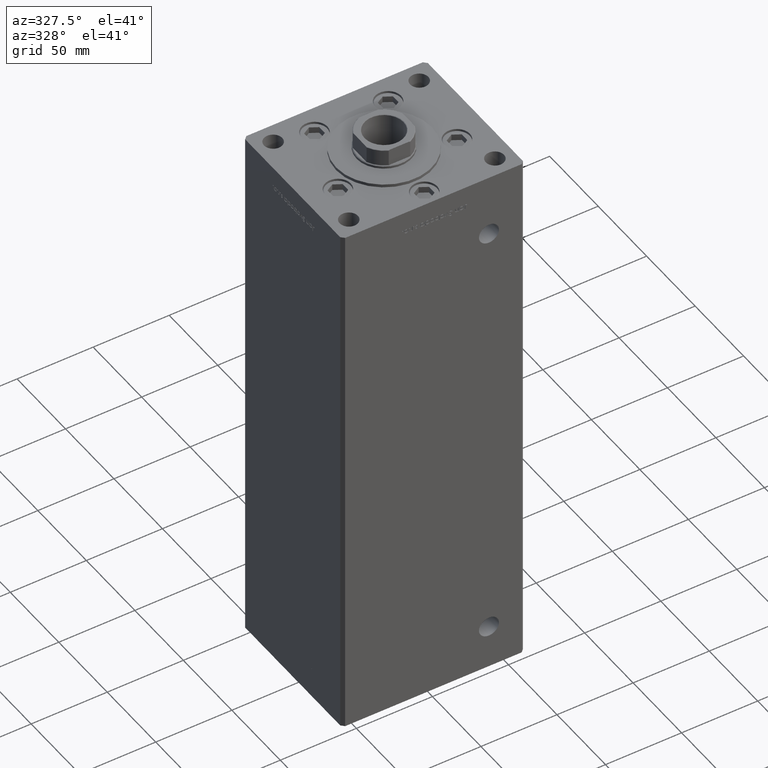
[diagram: clean part render]
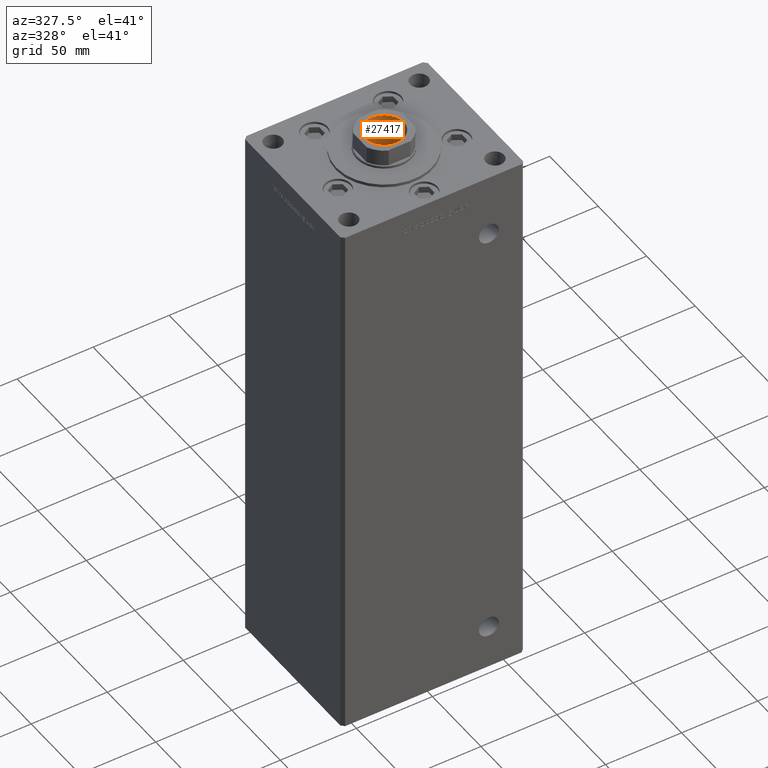
[diagram: same view with one face highlighted and labeled with its STEP entity id]
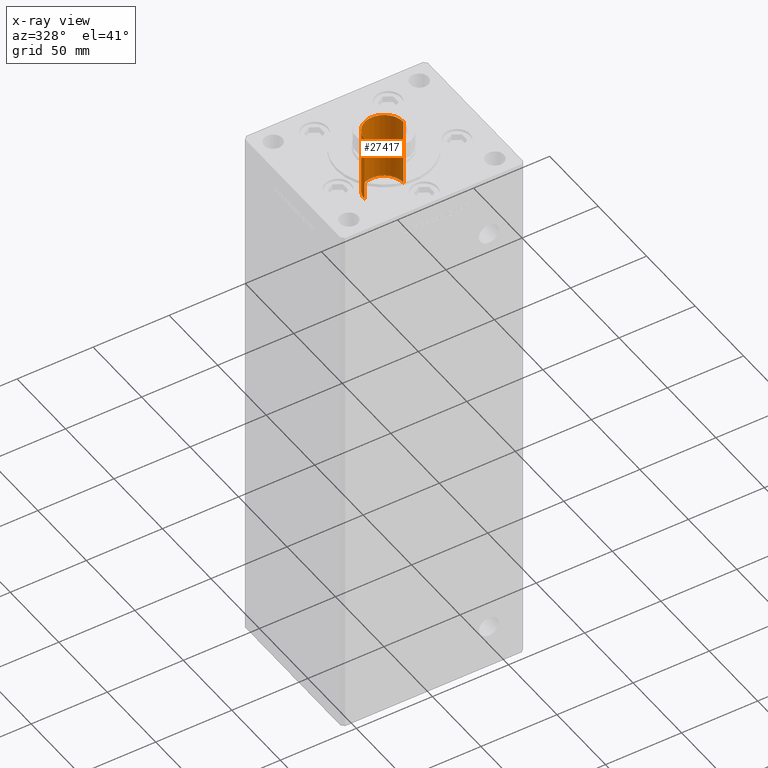
[diagram: x-ray of the same camera — body ghosted, the highlighted face saturated]
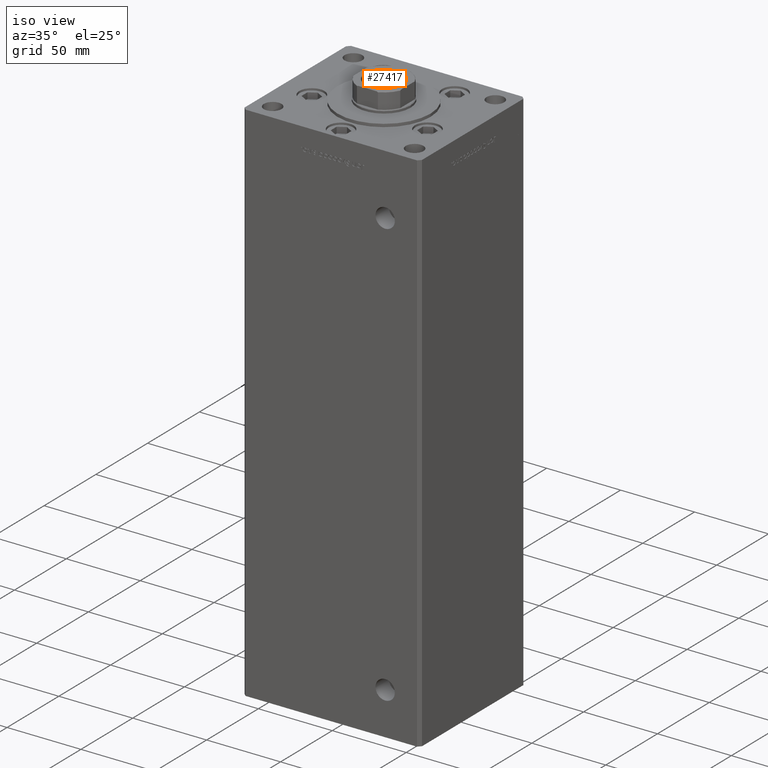
[diagram: same view with one face highlighted and labeled with its STEP entity id]
A machine part, auxiliary view. The second image highlights one B-rep face of the part: STEP entity #27417.
The next image is the same camera in x-ray: the body ghosted, the highlighted face saturated — about 2% of this face is hidden behind the body in this view.
A second angle (iso view) of the same face is appended — the face is thin or edge-on in the first view.
In plain terms, the highlighted cylindrical surface (edge-blend (fillet) strip) has radius 12.75 mm, axis along (0, 0, 1).
Its self-contained STEP definition (entity closure, byte-faithful):
#164 = DIRECTION ( 'NONE',  ( 1.000000000000000000, 0.000000000000000000, 0.000000000000000000 ) ) ;
#1270 = ORIENTED_EDGE ( 'NONE', *, *, #19704, .F. ) ;
#3348 = ORIENTED_EDGE ( 'NONE', *, *, #6024, .F. ) ;
#6024 = EDGE_CURVE ( 'NONE', #34220, #38575, #6773, .T. ) ;
#6773 = LINE ( 'NONE', #18635, #44429 ) ;
#12573 = CARTESIAN_POINT ( 'NONE',  ( 0.000000000000000000, 0.000000000000000000, 339.2500000000000000 ) ) ;
#18260 = DIRECTION ( 'NONE',  ( -0.000000000000000000, -0.000000000000000000, 1.000000000000000000 ) ) ;
#18635 = CARTESIAN_POINT ( 'NONE',  ( -12.74999999999999467, 1.561424668912874519E-15, 339.2500000000000000 ) ) ;
#19435 = AXIS2_PLACEMENT_3D ( 'NONE', #30308, #29259, #29782 ) ;
#19704 = EDGE_CURVE ( 'NONE', #31630, #34220, #44677, .T. ) ;
#20365 = CIRCLE ( 'NONE', #44747, 12.74999999999999467 ) ;
#21945 = EDGE_CURVE ( 'NONE', #44319, #38575, #20365, .T. ) ;
#23762 = VECTOR ( 'NONE', #18260, 1000.000000000000000 ) ;
#24451 = EDGE_LOOP ( 'NONE', ( #3348, #1270, #30689, #24697 ) ) ;
#24653 = CARTESIAN_POINT ( 'NONE',  ( 0.000000000000000000, 0.000000000000000000, 338.9500000000000455 ) ) ;
#24694 = CYLINDRICAL_SURFACE ( 'NONE', #31319, 12.74999999999999467 ) ;
#24697 = ORIENTED_EDGE ( 'NONE', *, *, #21945, .T. ) ;
#25633 = LINE ( 'NONE', #33811, #23762 ) ;
#27417 = ADVANCED_FACE ( 'NONE', ( #36578 ), #24694, .F. ) ;
#28710 = CARTESIAN_POINT ( 'NONE',  ( 12.74999999999999112, 0.000000000000000000, 294.2500000000000000 ) ) ;
#29259 = DIRECTION ( 'NONE',  ( -0.000000000000000000, -0.000000000000000000, 1.000000000000000000 ) ) ;
#29782 = DIRECTION ( 'NONE',  ( 1.000000000000000000, 0.000000000000000000, 0.000000000000000000 ) ) ;
#30308 = CARTESIAN_POINT ( 'NONE',  ( 0.000000000000000000, 0.000000000000000000, 294.2500000000000000 ) ) ;
#30689 = ORIENTED_EDGE ( 'NONE', *, *, #48827, .T. ) ;
#31319 = AXIS2_PLACEMENT_3D ( 'NONE', #12573, #44227, #48421 ) ;
#31630 = VERTEX_POINT ( 'NONE', #28710 ) ;
#32203 = CARTESIAN_POINT ( 'NONE',  ( 12.74999999999999467, 0.000000000000000000, 338.9500000000000455 ) ) ;
#33160 = CARTESIAN_POINT ( 'NONE',  ( -12.74999999999999467, 1.561424668912874519E-15, 338.9500000000000455 ) ) ;
#33811 = CARTESIAN_POINT ( 'NONE',  ( 12.74999999999999467, 0.000000000000000000, 339.2500000000000000 ) ) ;
#34220 = VERTEX_POINT ( 'NONE', #45096 ) ;
#36539 = DIRECTION ( 'NONE',  ( 0.000000000000000000, 0.000000000000000000, 1.000000000000000000 ) ) ;
#36578 = FACE_OUTER_BOUND ( 'NONE', #24451, .T. ) ;
#38575 = VERTEX_POINT ( 'NONE', #33160 ) ;
#39189 = DIRECTION ( 'NONE',  ( -0.000000000000000000, -0.000000000000000000, 1.000000000000000000 ) ) ;
#44227 = DIRECTION ( 'NONE',  ( -0.000000000000000000, -0.000000000000000000, 1.000000000000000000 ) ) ;
#44319 = VERTEX_POINT ( 'NONE', #32203 ) ;
#44429 = VECTOR ( 'NONE', #39189, 1000.000000000000000 ) ;
#44677 = CIRCLE ( 'NONE', #19435, 12.74999999999999112 ) ;
#44747 = AXIS2_PLACEMENT_3D ( 'NONE', #24653, #36539, #164 ) ;
#45096 = CARTESIAN_POINT ( 'NONE',  ( -12.74999999999999112, 1.561424668912874125E-15, 294.2500000000000000 ) ) ;
#48421 = DIRECTION ( 'NONE',  ( 1.000000000000000000, 0.000000000000000000, 0.000000000000000000 ) ) ;
#48827 = EDGE_CURVE ( 'NONE', #31630, #44319, #25633, .T. ) ;